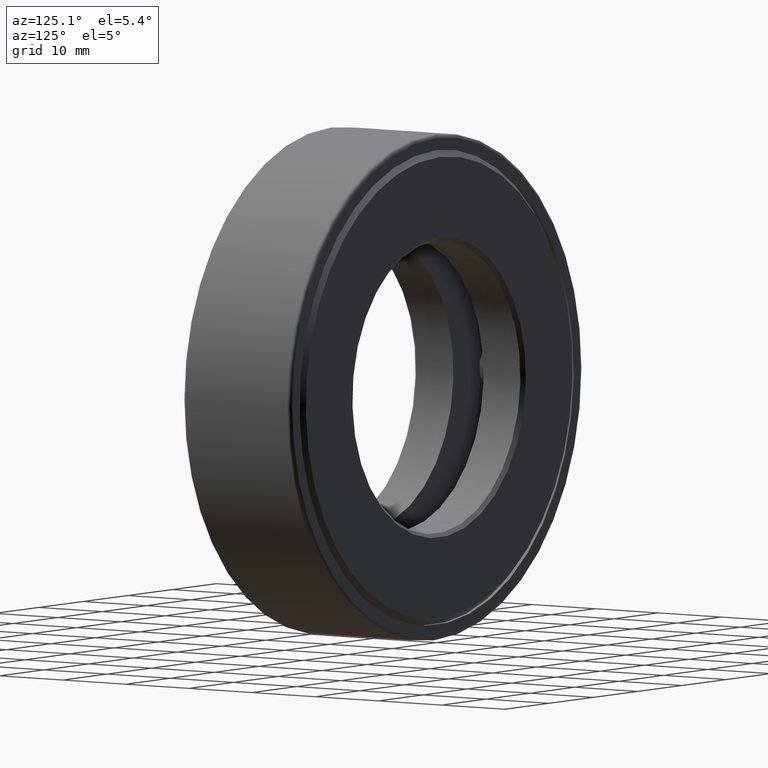
[diagram: clean part render]
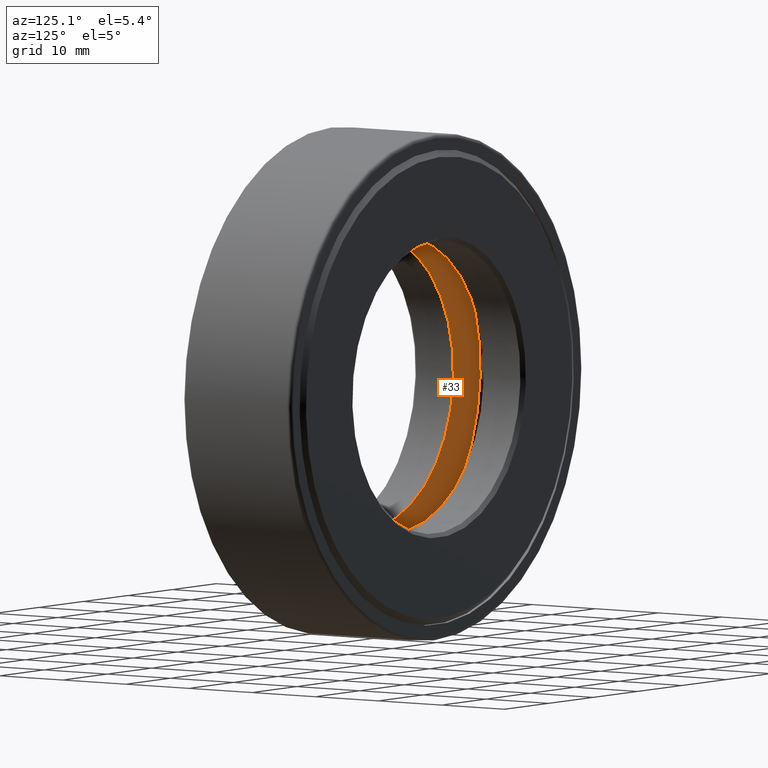
[diagram: same view with one face highlighted and labeled with its STEP entity id]
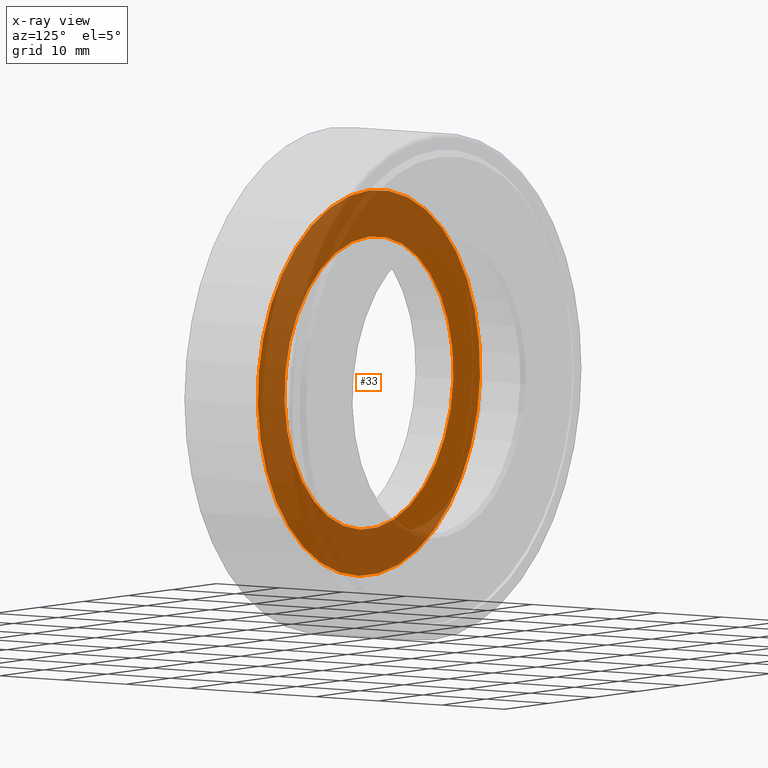
[diagram: x-ray of the same camera — body ghosted, the highlighted face saturated]
A machine part, auxiliary view. The second image highlights one B-rep face of the part: STEP entity #33.
The next image is the same camera in x-ray: the body ghosted, the highlighted face saturated — about 68% of this face is hidden behind the body in this view.
In plain terms, the highlighted planar face has unit normal (0, -1, 0).
Its self-contained STEP definition (entity closure, byte-faithful):
#33 = ADVANCED_FACE ( 'NONE', ( #548, #148 ), #218, .F. ) ;
#49 = CARTESIAN_POINT ( 'NONE',  ( 0.0000000000000000000, 0.2499999999999999700, 0.0000000000000000000 ) ) ;
#91 = AXIS2_PLACEMENT_3D ( 'NONE', #580, #122, #402 ) ;
#102 = CIRCLE ( 'NONE', #91, 0.9866250000000003100 ) ;
#120 = CIRCLE ( 'NONE', #331, 0.7500000000000002200 ) ;
#122 = DIRECTION ( 'NONE',  ( -0.0000000000000000000, 1.000000000000000000, -0.0000000000000000000 ) ) ;
#135 = AXIS2_PLACEMENT_3D ( 'NONE', #257, #312, #322 ) ;
#148 = FACE_OUTER_BOUND ( 'NONE', #425, .T. ) ;
#188 = EDGE_LOOP ( 'NONE', ( #364 ) ) ;
#202 = VERTEX_POINT ( 'NONE', #394 ) ;
#218 = PLANE ( 'NONE',  #135 ) ;
#257 = CARTESIAN_POINT ( 'NONE',  ( -7.215657669477718100E-017, 0.2499999999999999200, 0.0000000000000000000 ) ) ;
#279 = EDGE_CURVE ( 'NONE', #202, #202, #120, .T. ) ;
#312 = DIRECTION ( 'NONE',  ( 0.0000000000000000000, -1.000000000000000000, 0.0000000000000000000 ) ) ;
#314 = VERTEX_POINT ( 'NONE', #472 ) ;
#322 = DIRECTION ( 'NONE',  ( 0.0000000000000000000, -0.0000000000000000000, -1.000000000000000000 ) ) ;
#331 = AXIS2_PLACEMENT_3D ( 'NONE', #49, #383, #562 ) ;
#364 = ORIENTED_EDGE ( 'NONE', *, *, #279, .F. ) ;
#382 = ORIENTED_EDGE ( 'NONE', *, *, #506, .T. ) ;
#383 = DIRECTION ( 'NONE',  ( -0.0000000000000000000, 1.000000000000000000, -0.0000000000000000000 ) ) ;
#394 = CARTESIAN_POINT ( 'NONE',  ( 0.0000000000000000000, 0.2499999999999999700, 0.7500000000000002200 ) ) ;
#402 = DIRECTION ( 'NONE',  ( 0.0000000000000000000, 0.0000000000000000000, 1.000000000000000000 ) ) ;
#425 = EDGE_LOOP ( 'NONE', ( #382 ) ) ;
#472 = CARTESIAN_POINT ( 'NONE',  ( 0.0000000000000000000, 0.2499999999999998900, 0.9866250000000003100 ) ) ;
#506 = EDGE_CURVE ( 'NONE', #314, #314, #102, .T. ) ;
#548 = FACE_BOUND ( 'NONE', #188, .T. ) ;
#562 = DIRECTION ( 'NONE',  ( 0.0000000000000000000, 0.0000000000000000000, 1.000000000000000000 ) ) ;
#580 = CARTESIAN_POINT ( 'NONE',  ( 0.0000000000000000000, 0.2499999999999998900, 0.0000000000000000000 ) ) ;